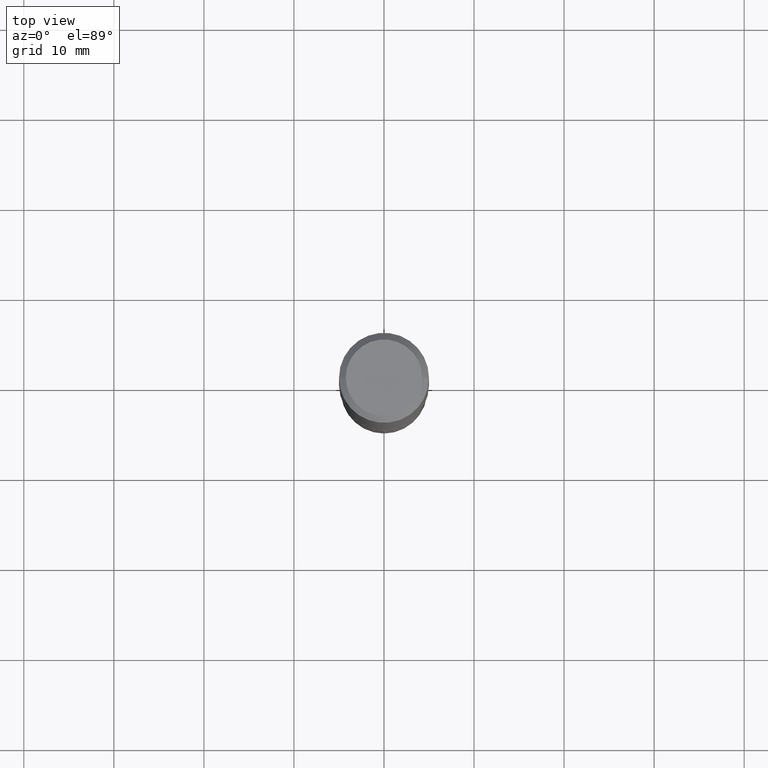
[diagram: clean part render]
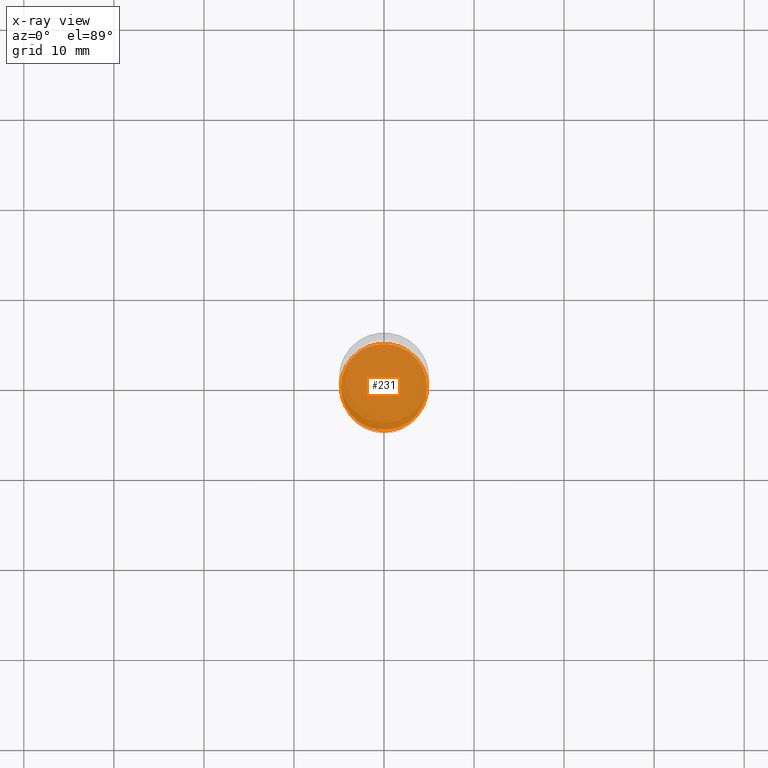
[diagram: x-ray — body ghosted, one internal face saturated and labeled with its STEP entity id]
A machine part, top view, then the same camera in x-ray: the body is ghosted and one INTERNAL B-rep face — a face not visible from any outside direction — is saturated and labeled: STEP entity #231.
In plain terms, the highlighted planar face has unit normal (-0, 0, 1).
Its self-contained STEP definition (entity closure, byte-faithful):
#7 = CIRCLE ( 'NONE', #270, 0.1884999999999999731 ) ;
#11 = EDGE_CURVE ( 'NONE', #343, #61, #7, .T. ) ;
#51 = ORIENTED_EDGE ( 'NONE', *, *, #11, .F. ) ;
#61 = VERTEX_POINT ( 'NONE', #74 ) ;
#73 = CARTESIAN_POINT ( 'NONE',  ( 0.1884999999999999731, -9.565262275894677852E-15, -2.362600000000000033 ) ) ;
#74 = CARTESIAN_POINT ( 'NONE',  ( -0.1884999999999999731, -6.906951527068917560E-15, -2.362600000000000033 ) ) ;
#93 = CARTESIAN_POINT ( 'NONE',  ( 5.777664601493003770E-29, -8.248973811150816829E-15, -2.362600000000000033 ) ) ;
#94 = AXIS2_PLACEMENT_3D ( 'NONE', #212, #139, #454 ) ;
#139 = DIRECTION ( 'NONE',  ( -2.438088387897960049E-29, 3.491481338843145188E-15, 1.000000000000000000 ) ) ;
#163 = EDGE_LOOP ( 'NONE', ( #51, #421 ) ) ;
#212 = CARTESIAN_POINT ( 'NONE',  ( 5.777664601493003770E-29, -8.248973811150816829E-15, -2.362600000000000033 ) ) ;
#231 = ADVANCED_FACE ( 'NONE', ( #422 ), #387, .F. ) ;
#235 = DIRECTION ( 'NONE',  ( 1.000000000000000000, -6.982962677686264344E-15, 0.000000000000000000 ) ) ;
#263 = DIRECTION ( 'NONE',  ( -2.445468806185136597E-29, 3.491481338843145583E-15, 1.000000000000000000 ) ) ;
#270 = AXIS2_PLACEMENT_3D ( 'NONE', #455, #276, #235 ) ;
#276 = DIRECTION ( 'NONE',  ( -2.445468806185136597E-29, 3.491481338843145583E-15, 1.000000000000000000 ) ) ;
#343 = VERTEX_POINT ( 'NONE', #73 ) ;
#370 = EDGE_CURVE ( 'NONE', #61, #343, #411, .T. ) ;
#387 = PLANE ( 'NONE',  #94 ) ;
#411 = CIRCLE ( 'NONE', #445, 0.1884999999999999731 ) ;
#415 = DIRECTION ( 'NONE',  ( 1.000000000000000000, -6.982962677686264344E-15, 0.000000000000000000 ) ) ;
#421 = ORIENTED_EDGE ( 'NONE', *, *, #370, .F. ) ;
#422 = FACE_OUTER_BOUND ( 'NONE', #163, .T. ) ;
#445 = AXIS2_PLACEMENT_3D ( 'NONE', #93, #263, #415 ) ;
#454 = DIRECTION ( 'NONE',  ( 1.000000000000000000, -6.982962677686265922E-15, 4.876176775795935793E-29 ) ) ;
#455 = CARTESIAN_POINT ( 'NONE',  ( 5.777664601493003770E-29, -8.248973811150816829E-15, -2.362600000000000033 ) ) ;